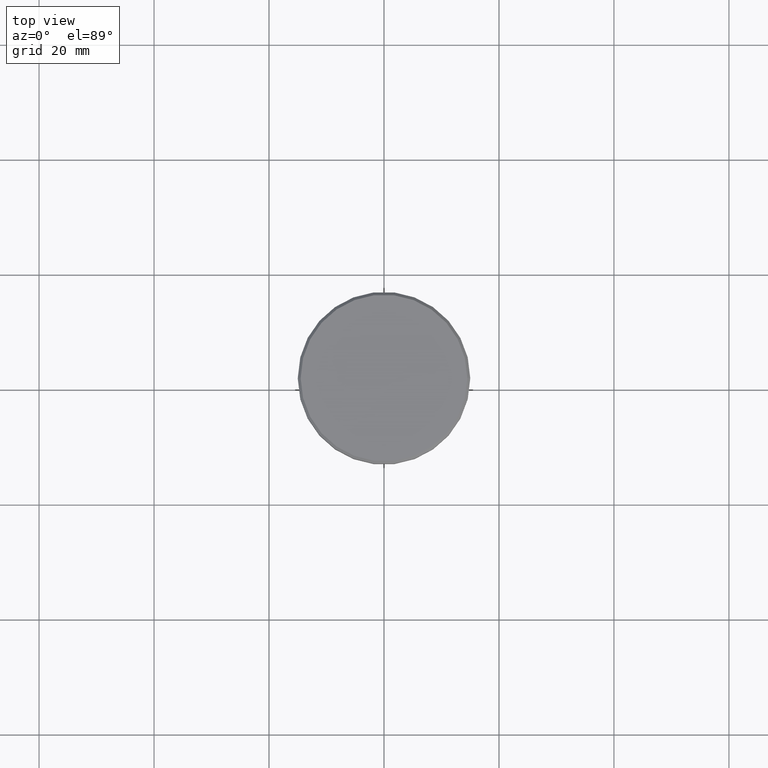
[diagram: clean part render]
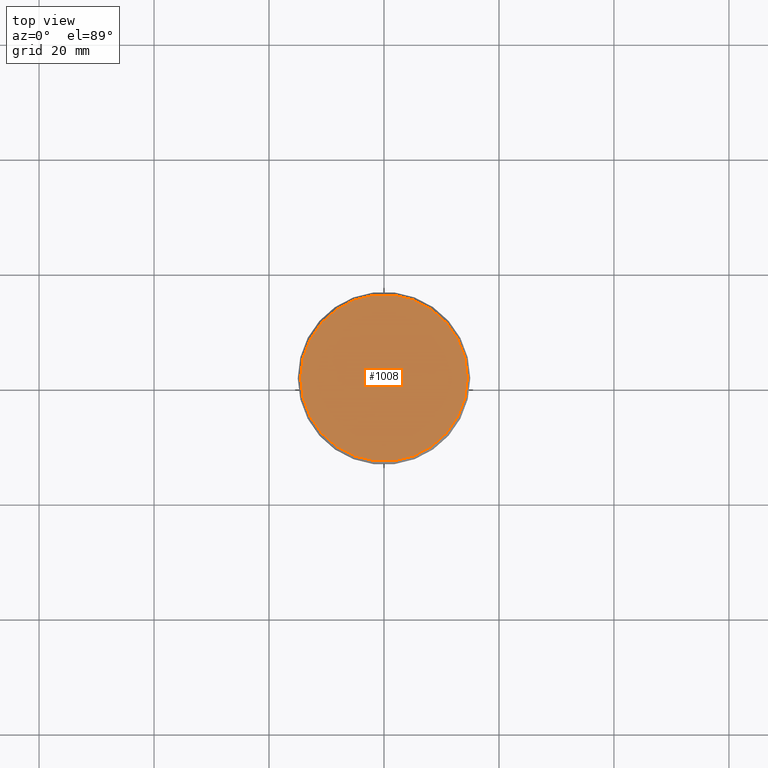
[diagram: same view with one face highlighted and labeled with its STEP entity id]
A machine part, top view. The second image highlights one B-rep face of the part: STEP entity #1008.
In plain terms, the highlighted planar face has unit normal (0, -0, 1).
Its self-contained STEP definition (entity closure, byte-faithful):
#31 = CARTESIAN_POINT ( 'NONE',  ( 0.000000000000000000, 0.000000000000000000, 0.000000000000000000 ) ) ;
#44 = DIRECTION ( 'NONE',  ( 0.000000000000000000, -0.000000000000000000, 1.000000000000000000 ) ) ;
#56 = EDGE_CURVE ( 'NONE', #1058, #599, #358, .T. ) ;
#60 = DIRECTION ( 'NONE',  ( 1.000000000000000000, 0.000000000000000000, 0.000000000000000000 ) ) ;
#61 = EDGE_LOOP ( 'NONE', ( #1121, #625 ) ) ;
#65 = CARTESIAN_POINT ( 'NONE',  ( 14.49999999999999645, 1.806354028742345802E-15, 0.000000000000000000 ) ) ;
#203 = CIRCLE ( 'NONE', #896, 14.49999999999999645 ) ;
#219 = AXIS2_PLACEMENT_3D ( 'NONE', #281, #888, #60 ) ;
#281 = CARTESIAN_POINT ( 'NONE',  ( 0.000000000000000000, 0.000000000000000000, 0.000000000000000000 ) ) ;
#300 = DIRECTION ( 'NONE',  ( -0.000000000000000000, -0.000000000000000000, 1.000000000000000000 ) ) ;
#358 = CIRCLE ( 'NONE', #219, 14.49999999999999645 ) ;
#381 = AXIS2_PLACEMENT_3D ( 'NONE', #1131, #44, #1140 ) ;
#599 = VERTEX_POINT ( 'NONE', #65 ) ;
#607 = FACE_OUTER_BOUND ( 'NONE', #61, .T. ) ;
#625 = ORIENTED_EDGE ( 'NONE', *, *, #874, .T. ) ;
#763 = DIRECTION ( 'NONE',  ( 1.000000000000000000, 0.000000000000000000, 0.000000000000000000 ) ) ;
#798 = PLANE ( 'NONE',  #381 ) ;
#874 = EDGE_CURVE ( 'NONE', #599, #1058, #203, .T. ) ;
#888 = DIRECTION ( 'NONE',  ( -0.000000000000000000, -0.000000000000000000, 1.000000000000000000 ) ) ;
#896 = AXIS2_PLACEMENT_3D ( 'NONE', #31, #300, #763 ) ;
#919 = CARTESIAN_POINT ( 'NONE',  ( -14.49999999999999645, 0.000000000000000000, 0.000000000000000000 ) ) ;
#1008 = ADVANCED_FACE ( 'NONE', ( #607 ), #798, .T. ) ;
#1058 = VERTEX_POINT ( 'NONE', #919 ) ;
#1121 = ORIENTED_EDGE ( 'NONE', *, *, #56, .T. ) ;
#1131 = CARTESIAN_POINT ( 'NONE',  ( 0.000000000000000000, 0.000000000000000000, 0.000000000000000000 ) ) ;
#1140 = DIRECTION ( 'NONE',  ( 1.000000000000000000, 0.000000000000000000, 0.000000000000000000 ) ) ;